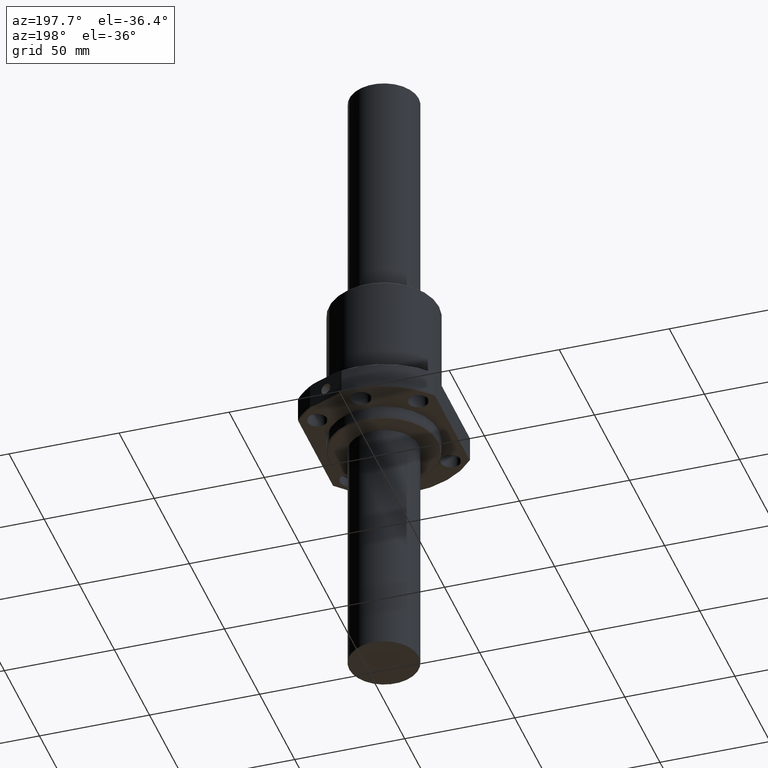
[diagram: clean part render]
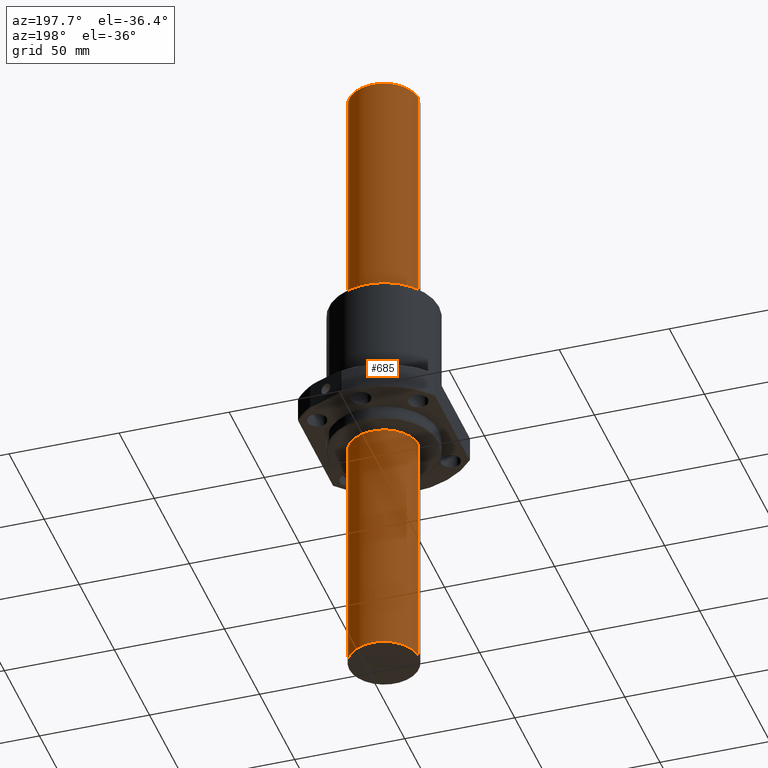
[diagram: same view with one face highlighted and labeled with its STEP entity id]
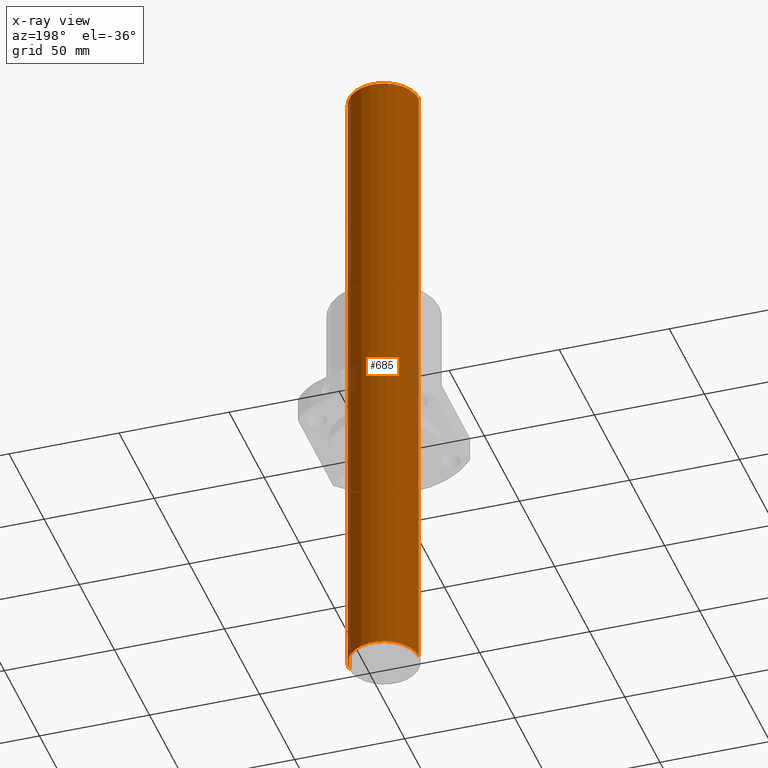
[diagram: x-ray of the same camera — body ghosted, the highlighted face saturated]
A machine part, auxiliary view. The second image highlights one B-rep face of the part: STEP entity #685.
The next image is the same camera in x-ray: the body ghosted, the highlighted face saturated — about 1% of this face is hidden behind the body in this view.
In plain terms, the highlighted cylindrical surface (edge-blend (fillet) strip) has radius 15.8 mm, axis along (0, 0, 1).
Its self-contained STEP definition (entity closure, byte-faithful):
#90 = VERTEX_POINT ( 'NONE', #1801 ) ;
#134 = ORIENTED_EDGE ( 'NONE', *, *, #704, .F. ) ;
#167 = CIRCLE ( 'NONE', #1578, 15.80000000000000100 ) ;
#192 = CARTESIAN_POINT ( 'NONE',  ( -15.80000000000000100, 1.934941942652818000E-015, 0.0000000000000000000 ) ) ;
#272 = ORIENTED_EDGE ( 'NONE', *, *, #961, .T. ) ;
#348 = AXIS2_PLACEMENT_3D ( 'NONE', #472, #811, #1386 ) ;
#381 = CYLINDRICAL_SURFACE ( 'NONE', #541, 15.80000000000000100 ) ;
#464 = FACE_OUTER_BOUND ( 'NONE', #629, .T. ) ;
#472 = CARTESIAN_POINT ( 'NONE',  ( 0.0000000000000000000, 0.0000000000000000000, 0.0000000000000000000 ) ) ;
#515 = VERTEX_POINT ( 'NONE', #1314 ) ;
#541 = AXIS2_PLACEMENT_3D ( 'NONE', #582, #754, #553 ) ;
#553 = DIRECTION ( 'NONE',  ( 1.000000000000000000, 0.0000000000000000000, 0.0000000000000000000 ) ) ;
#562 = CIRCLE ( 'NONE', #348, 15.80000000000000100 ) ;
#582 = CARTESIAN_POINT ( 'NONE',  ( 0.0000000000000000000, 0.0000000000000000000, -300.0000000000000000 ) ) ;
#602 = LINE ( 'NONE', #1268, #618 ) ;
#618 = VECTOR ( 'NONE', #1320, 1000.000000000000000 ) ;
#629 = EDGE_LOOP ( 'NONE', ( #872, #272, #134, #1585 ) ) ;
#685 = ADVANCED_FACE ( 'NONE', ( #464 ), #381, .T. ) ;
#704 = EDGE_CURVE ( 'NONE', #90, #1823, #562, .T. ) ;
#738 = DIRECTION ( 'NONE',  ( 0.0000000000000000000, -0.0000000000000000000, 1.000000000000000000 ) ) ;
#754 = DIRECTION ( 'NONE',  ( 0.0000000000000000000, -0.0000000000000000000, 1.000000000000000000 ) ) ;
#789 = LINE ( 'NONE', #1396, #1113 ) ;
#811 = DIRECTION ( 'NONE',  ( 0.0000000000000000000, -0.0000000000000000000, 1.000000000000000000 ) ) ;
#872 = ORIENTED_EDGE ( 'NONE', *, *, #1469, .F. ) ;
#946 = EDGE_CURVE ( 'NONE', #515, #90, #602, .T. ) ;
#961 = EDGE_CURVE ( 'NONE', #1605, #1823, #789, .T. ) ;
#1113 = VECTOR ( 'NONE', #738, 1000.000000000000000 ) ;
#1268 = CARTESIAN_POINT ( 'NONE',  ( 15.80000000000000100, 0.0000000000000000000, -300.0000000000000000 ) ) ;
#1314 = CARTESIAN_POINT ( 'NONE',  ( 15.80000000000000100, 0.0000000000000000000, -300.0000000000000000 ) ) ;
#1315 = CARTESIAN_POINT ( 'NONE',  ( 0.0000000000000000000, 0.0000000000000000000, -300.0000000000000000 ) ) ;
#1320 = DIRECTION ( 'NONE',  ( 0.0000000000000000000, -0.0000000000000000000, 1.000000000000000000 ) ) ;
#1386 = DIRECTION ( 'NONE',  ( 1.000000000000000000, 0.0000000000000000000, 0.0000000000000000000 ) ) ;
#1396 = CARTESIAN_POINT ( 'NONE',  ( -15.80000000000000100, 1.934941942652818000E-015, -300.0000000000000000 ) ) ;
#1469 = EDGE_CURVE ( 'NONE', #1605, #515, #167, .T. ) ;
#1513 = DIRECTION ( 'NONE',  ( -0.0000000000000000000, 0.0000000000000000000, -1.000000000000000000 ) ) ;
#1578 = AXIS2_PLACEMENT_3D ( 'NONE', #1315, #1513, #1749 ) ;
#1585 = ORIENTED_EDGE ( 'NONE', *, *, #946, .F. ) ;
#1605 = VERTEX_POINT ( 'NONE', #1802 ) ;
#1749 = DIRECTION ( 'NONE',  ( 1.000000000000000000, 0.0000000000000000000, 0.0000000000000000000 ) ) ;
#1801 = CARTESIAN_POINT ( 'NONE',  ( 15.80000000000000100, 0.0000000000000000000, 0.0000000000000000000 ) ) ;
#1802 = CARTESIAN_POINT ( 'NONE',  ( -15.80000000000000100, 1.934941942652818000E-015, -300.0000000000000000 ) ) ;
#1823 = VERTEX_POINT ( 'NONE', #192 ) ;